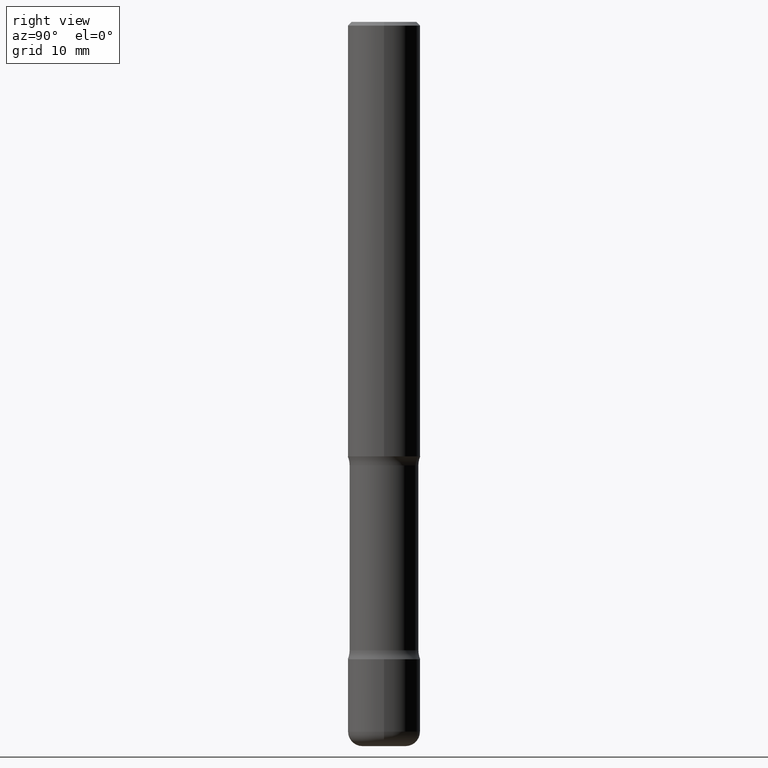
[diagram: clean part render]
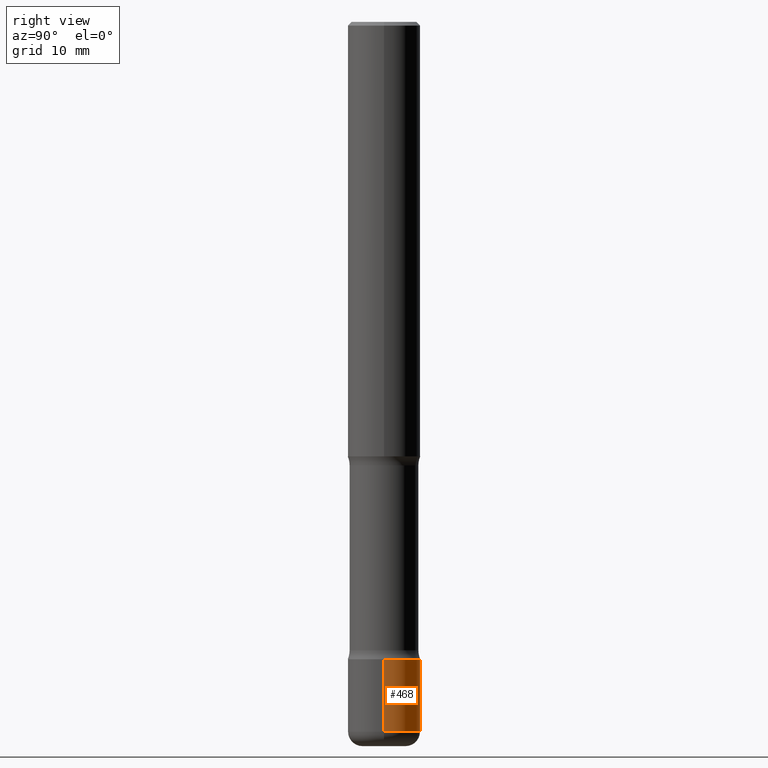
[diagram: same view with one face highlighted and labeled with its STEP entity id]
A machine part, right view. The second image highlights one B-rep face of the part: STEP entity #468.
In plain terms, the highlighted cylindrical surface (edge-blend (fillet) strip) has radius 5 mm, axis along (-0, 0, 1).
Its self-contained STEP definition (entity closure, byte-faithful):
#5 = AXIS2_PLACEMENT_3D ( 'NONE', #347, #516, #53 ) ;
#33 = DIRECTION ( 'NONE',  ( 1.000000000000000000, -6.982962677686266711E-15, 4.876176775795935793E-29 ) ) ;
#53 = DIRECTION ( 'NONE',  ( 1.000000000000000000, -6.982962677686269866E-15, 0.000000000000000000 ) ) ;
#73 = EDGE_CURVE ( 'NONE', #417, #113, #387, .T. ) ;
#93 = EDGE_CURVE ( 'NONE', #417, #101, #250, .T. ) ;
#95 = CIRCLE ( 'NONE', #521, 0.1968500000000001082 ) ;
#99 = CARTESIAN_POINT ( 'NONE',  ( -0.1968500000000001082, -1.138518097276347833E-14, -3.464599999999999902 ) ) ;
#101 = VERTEX_POINT ( 'NONE', #420 ) ;
#107 = VERTEX_POINT ( 'NONE', #99 ) ;
#113 = VERTEX_POINT ( 'NONE', #305 ) ;
#122 = EDGE_LOOP ( 'NONE', ( #449, #396, #213, #485 ) ) ;
#125 = EDGE_CURVE ( 'NONE', #113, #107, #95, .T. ) ;
#139 = DIRECTION ( 'NONE',  ( -2.445468806185136597E-29, 3.491481338843145583E-15, 1.000000000000000000 ) ) ;
#164 = DIRECTION ( 'NONE',  ( -2.445468806185136597E-29, 3.491481338843145583E-15, 1.000000000000000000 ) ) ;
#213 = ORIENTED_EDGE ( 'NONE', *, *, #125, .F. ) ;
#227 = AXIS2_PLACEMENT_3D ( 'NONE', #546, #164, #33 ) ;
#250 = CIRCLE ( 'NONE', #5, 0.1968500000000002470 ) ;
#264 = CARTESIAN_POINT ( 'NONE',  ( 8.472571225909024784E-29, -1.209658624655596216E-14, -3.464599999999999902 ) ) ;
#272 = DIRECTION ( 'NONE',  ( -2.445468806185136877E-29, 3.491481338843145188E-15, 1.000000000000000000 ) ) ;
#291 = EDGE_CURVE ( 'NONE', #101, #107, #308, .T. ) ;
#294 = CYLINDRICAL_SURFACE ( 'NONE', #227, 0.1968500000000001915 ) ;
#305 = CARTESIAN_POINT ( 'NONE',  ( 0.1968500000000001082, -1.347118244965850534E-14, -3.464599999999999902 ) ) ;
#308 = LINE ( 'NONE', #315, #371 ) ;
#315 = CARTESIAN_POINT ( 'NONE',  ( -0.1968500000000001915, 1.398703375343758577E-15, -9.682923725166790684E-30 ) ) ;
#336 = DIRECTION ( 'NONE',  ( 1.000000000000000000, -6.982962677686265133E-15, 0.000000000000000000 ) ) ;
#344 = CARTESIAN_POINT ( 'NONE',  ( 0.1968500000000001915, -1.374596203102542989E-15, 9.598753983154309266E-30 ) ) ;
#347 = CARTESIAN_POINT ( 'NONE',  ( 9.435352294904112142E-29, -1.347118244965850850E-14, -3.858300000000000285 ) ) ;
#371 = VECTOR ( 'NONE', #272, 39.37007874015748143 ) ;
#387 = LINE ( 'NONE', #344, #492 ) ;
#396 = ORIENTED_EDGE ( 'NONE', *, *, #291, .T. ) ;
#417 = VERTEX_POINT ( 'NONE', #501 ) ;
#420 = CARTESIAN_POINT ( 'NONE',  ( -0.1968500000000002192, -1.207247907431474834E-14, -3.858300000000000285 ) ) ;
#449 = ORIENTED_EDGE ( 'NONE', *, *, #93, .T. ) ;
#468 = ADVANCED_FACE ( 'NONE', ( #552 ), #294, .T. ) ;
#470 = DIRECTION ( 'NONE',  ( -2.445468806185136877E-29, 3.491481338843145188E-15, 1.000000000000000000 ) ) ;
#485 = ORIENTED_EDGE ( 'NONE', *, *, #73, .F. ) ;
#492 = VECTOR ( 'NONE', #470, 39.37007874015748143 ) ;
#501 = CARTESIAN_POINT ( 'NONE',  ( 0.1968500000000002192, -1.484577865276105326E-14, -3.858300000000000285 ) ) ;
#516 = DIRECTION ( 'NONE',  ( -2.445468806185136597E-29, 3.491481338843145583E-15, 1.000000000000000000 ) ) ;
#521 = AXIS2_PLACEMENT_3D ( 'NONE', #264, #139, #336 ) ;
#546 = CARTESIAN_POINT ( 'NONE',  ( 0.000000000000000000, 0.000000000000000000, 0.000000000000000000 ) ) ;
#552 = FACE_OUTER_BOUND ( 'NONE', #122, .T. ) ;